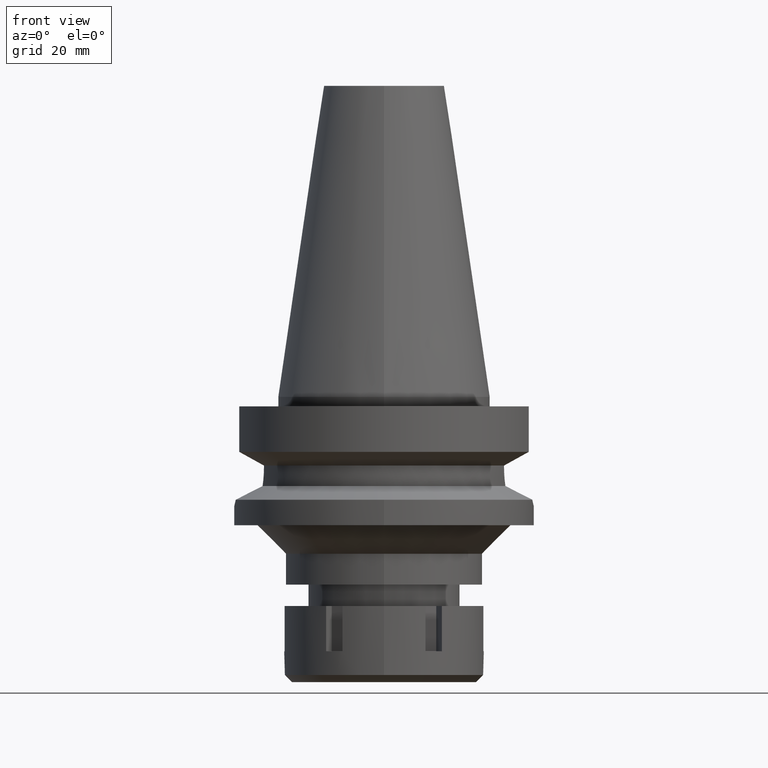
[diagram: clean part render]
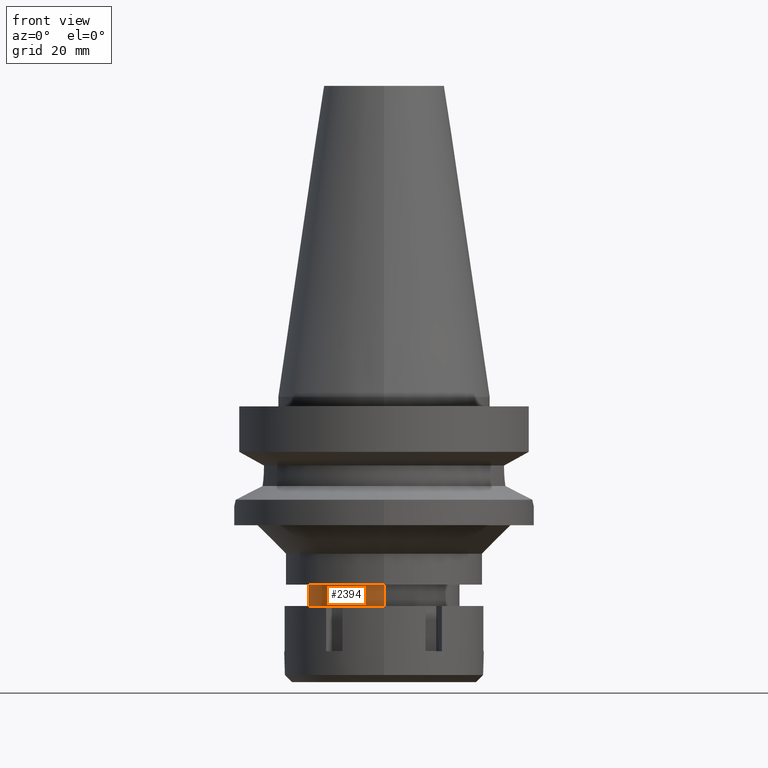
[diagram: same view with one face highlighted and labeled with its STEP entity id]
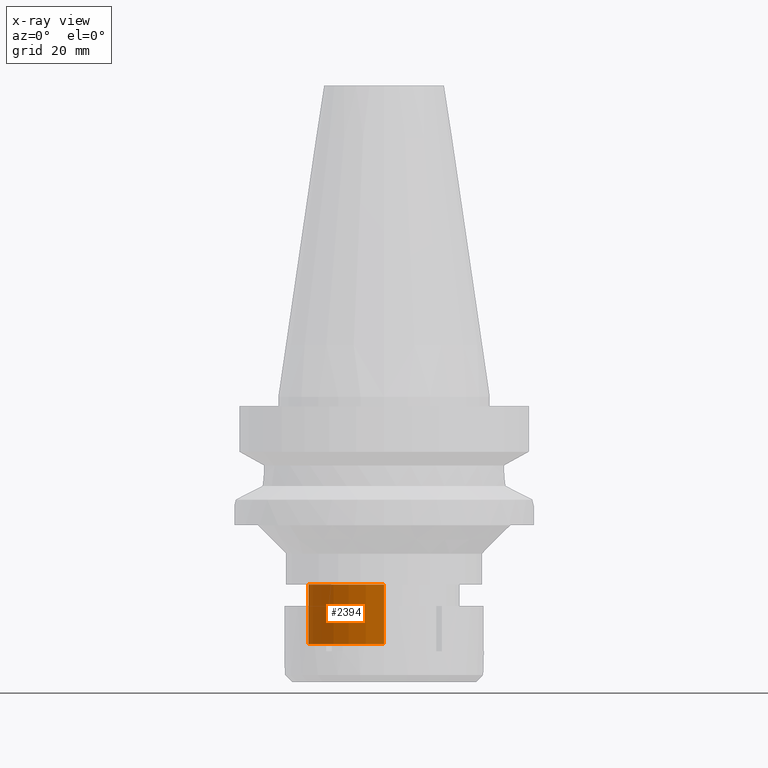
[diagram: x-ray of the same camera — body ghosted, the highlighted face saturated]
A machine part, front view. The second image highlights one B-rep face of the part: STEP entity #2394.
The next image is the same camera in x-ray: the body ghosted, the highlighted face saturated — about 0% of this face is hidden behind the body in this view.
In plain terms, the highlighted cylindrical surface (partial cylindrical patch) has radius 16 mm, axis along (0, 0, -1).
Its self-contained STEP definition (entity closure, byte-faithful):
#32 = AXIS2_PLACEMENT_3D ( 'NONE', #276, #2707, #260 ) ;
#260 = DIRECTION ( 'NONE',  ( 0.0000000000000000000, -1.000000000000000000, 0.0000000000000000000 ) ) ;
#267 = DIRECTION ( 'NONE',  ( 0.0000000000000000000, 0.0000000000000000000, -1.000000000000000000 ) ) ;
#276 = CARTESIAN_POINT ( 'NONE',  ( 0.0000000000000000000, 2.097452572899999775E-14, 71.26999999999999602 ) ) ;
#303 = DIRECTION ( 'NONE',  ( 0.0000000000000000000, 0.0000000000000000000, -1.000000000000000000 ) ) ;
#345 = ORIENTED_EDGE ( 'NONE', *, *, #2044, .T. ) ;
#546 = VERTEX_POINT ( 'NONE', #3074 ) ;
#786 = FACE_OUTER_BOUND ( 'NONE', #3194, .T. ) ;
#909 = AXIS2_PLACEMENT_3D ( 'NONE', #1366, #1863, #2446 ) ;
#912 = VECTOR ( 'NONE', #267, 1000.000000000000000 ) ;
#1121 = CARTESIAN_POINT ( 'NONE',  ( 0.0000000000000000000, 16.00000000000000000, -39.50000000000000000 ) ) ;
#1135 = ORIENTED_EDGE ( 'NONE', *, *, #2001, .F. ) ;
#1243 = CIRCLE ( 'NONE', #909, 16.00000000000000000 ) ;
#1366 = CARTESIAN_POINT ( 'NONE',  ( 0.0000000000000000000, 2.097452572899999775E-14, -52.00000000000000000 ) ) ;
#1387 = CIRCLE ( 'NONE', #3051, 16.00000000000000000 ) ;
#1547 = VERTEX_POINT ( 'NONE', #1121 ) ;
#1567 = VERTEX_POINT ( 'NONE', #2484 ) ;
#1863 = DIRECTION ( 'NONE',  ( 0.0000000000000000000, 0.0000000000000000000, 1.000000000000000000 ) ) ;
#1986 = VECTOR ( 'NONE', #3014, 1000.000000000000000 ) ;
#2001 = EDGE_CURVE ( 'NONE', #1567, #546, #3045, .T. ) ;
#2044 = EDGE_CURVE ( 'NONE', #1547, #2504, #2733, .T. ) ;
#2394 = ADVANCED_FACE ( 'NONE', ( #786 ), #3496, .T. ) ;
#2397 = EDGE_CURVE ( 'NONE', #2504, #546, #1243, .T. ) ;
#2446 = DIRECTION ( 'NONE',  ( 0.0000000000000000000, 1.000000000000000000, 0.0000000000000000000 ) ) ;
#2479 = CARTESIAN_POINT ( 'NONE',  ( 0.0000000000000000000, 16.00000000000000000, -52.00000000000000000 ) ) ;
#2484 = CARTESIAN_POINT ( 'NONE',  ( 0.0000000000000000000, -16.00000000000000000, -39.50000000000000000 ) ) ;
#2487 = CARTESIAN_POINT ( 'NONE',  ( 0.0000000000000000000, -16.00000000000000000, -39.50000000000000000 ) ) ;
#2489 = CARTESIAN_POINT ( 'NONE',  ( 0.0000000000000000000, 2.097452572899999775E-14, -39.50000000000000000 ) ) ;
#2504 = VERTEX_POINT ( 'NONE', #2479 ) ;
#2581 = EDGE_CURVE ( 'NONE', #1567, #1547, #1387, .T. ) ;
#2707 = DIRECTION ( 'NONE',  ( 0.0000000000000000000, 0.0000000000000000000, -1.000000000000000000 ) ) ;
#2733 = LINE ( 'NONE', #2769, #912 ) ;
#2769 = CARTESIAN_POINT ( 'NONE',  ( 0.0000000000000000000, 16.00000000000000000, -39.50000000000000000 ) ) ;
#3014 = DIRECTION ( 'NONE',  ( 0.0000000000000000000, 0.0000000000000000000, -1.000000000000000000 ) ) ;
#3045 = LINE ( 'NONE', #2487, #1986 ) ;
#3051 = AXIS2_PLACEMENT_3D ( 'NONE', #2489, #303, #3071 ) ;
#3071 = DIRECTION ( 'NONE',  ( 0.0000000000000000000, -1.000000000000000000, 0.0000000000000000000 ) ) ;
#3074 = CARTESIAN_POINT ( 'NONE',  ( 0.0000000000000000000, -16.00000000000000000, -52.00000000000000000 ) ) ;
#3158 = ORIENTED_EDGE ( 'NONE', *, *, #2581, .T. ) ;
#3189 = ORIENTED_EDGE ( 'NONE', *, *, #2397, .T. ) ;
#3194 = EDGE_LOOP ( 'NONE', ( #3189, #1135, #3158, #345 ) ) ;
#3496 = CYLINDRICAL_SURFACE ( 'NONE', #32, 16.00000000000000000 ) ;